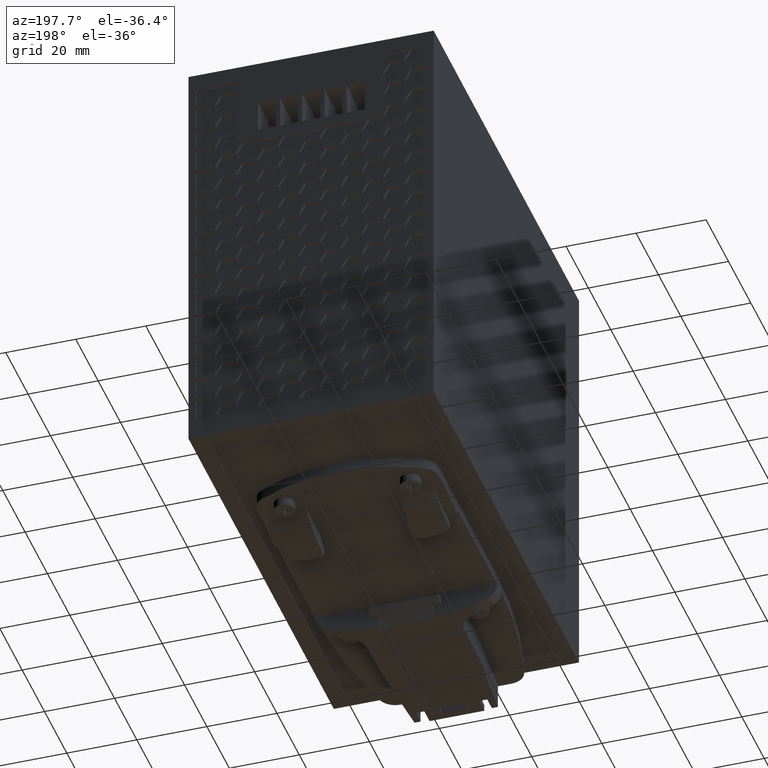
[diagram: clean part render]
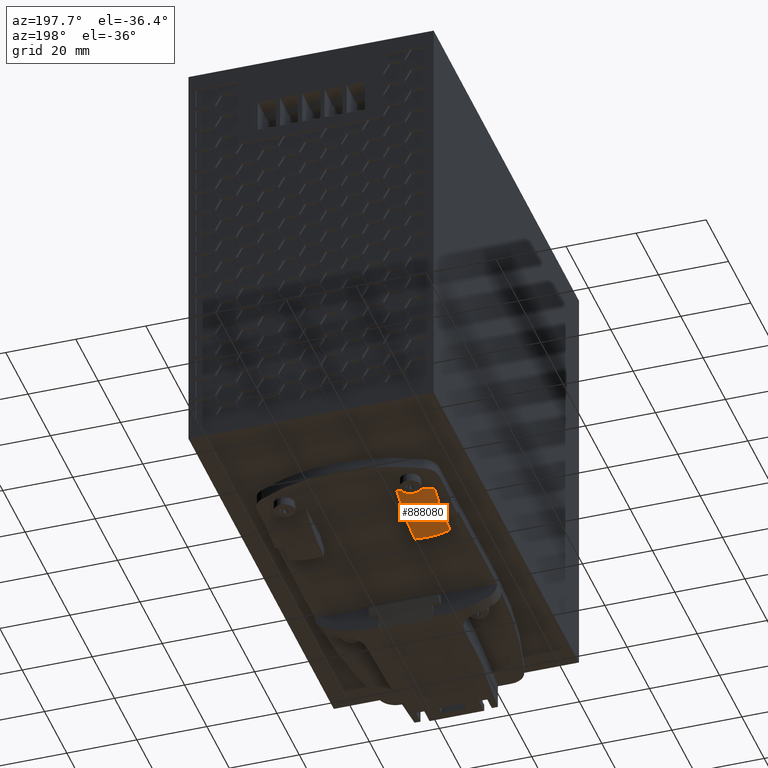
[diagram: same view with one face highlighted and labeled with its STEP entity id]
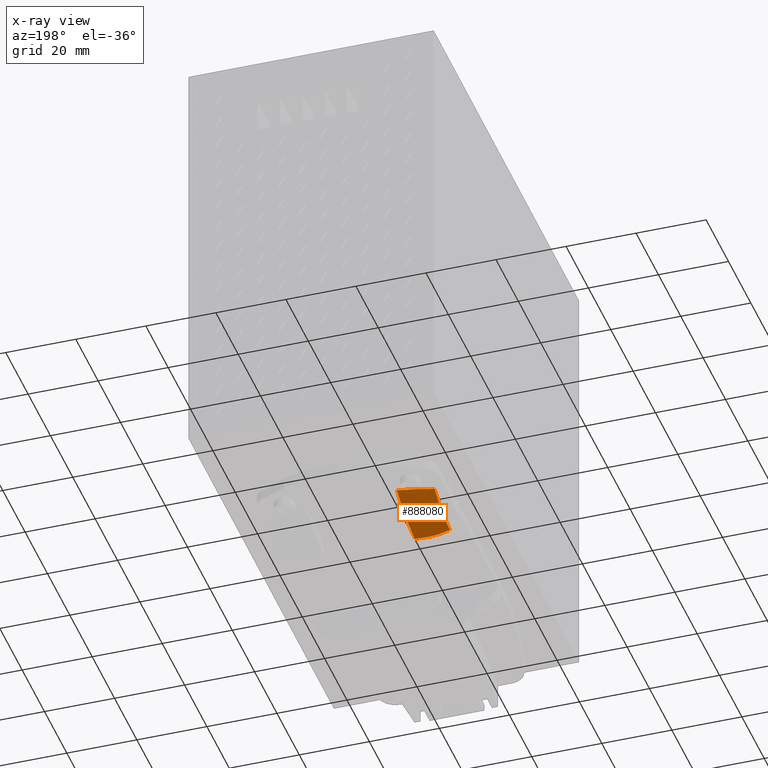
[diagram: x-ray of the same camera — body ghosted, the highlighted face saturated]
A machine part, auxiliary view. The second image highlights one B-rep face of the part: STEP entity #888080.
The next image is the same camera in x-ray: the body ghosted, the highlighted face saturated — about 0% of this face is hidden behind the body in this view.
In plain terms, the highlighted face is a freeform B-spline surface patch.
Its self-contained STEP definition (entity closure, byte-faithful):
#857470=CARTESIAN_POINT('',(22.,-2.90000000000834,35.0890002542883));
#857480=VERTEX_POINT('',#857470);
#861010=CARTESIAN_POINT('',(18.775,-2.90000000000834,41.3012793438114));
#861020=DIRECTION('',(-0.,-1.,-0.));
#861030=DIRECTION('',(-1.,0.,0.));
#861040=AXIS2_PLACEMENT_3D('',#861010,#861020,#861030);
#861050=PLANE('',#861040);
#861940=CARTESIAN_POINT('',(12.,-2.90000000000834,37.575340722643));
#861950=VERTEX_POINT('',#861940);
#861980=CARTESIAN_POINT('',(-7.12537536099568,-0.024157436349638,
72.158718448555));
#861990=CARTESIAN_POINT('',(-0.66433586073838,-2.44680655368535,
72.1423761231903));
#862000=CARTESIAN_POINT('',(5.79670363951892,-4.86945567102107,
72.1260337978256));
#862010=CARTESIAN_POINT('',(12.8831500440995,-7.52660907898587,
72.1081095903016));
#862020=CARTESIAN_POINT('',(14.5182375434165,-8.01053961595613,
72.1026759404664));
#862030=CARTESIAN_POINT('',(16.9951777479325,-8.47560736818407,
72.0958256492188));
#862040=CARTESIAN_POINT('',(19.4687754632712,-8.77872752085569,
72.089618906749));
#862050=CARTESIAN_POINT('',(21.1030366765803,-8.93745753933871,
72.0836423132758));
#862060=CARTESIAN_POINT('',(28.394082302875,-9.66752438148413,
72.0452352190095));
#862070=CARTESIAN_POINT('',(35.3537203614215,-10.3644067273515,
72.0085738828069));
#862080=CARTESIAN_POINT('',(42.3133584199679,-11.0612890732188,
71.9719125466043));
#862090=CARTESIAN_POINT('',(-7.52761834698492,-1.2485053944542,
63.6743786143508));
#862100=CARTESIAN_POINT('',(-0.864892364229036,-3.25933174225435,
64.0517672846608));
#862110=CARTESIAN_POINT('',(5.79783361852685,-5.2701580900545,
64.4291559549709));
#862120=CARTESIAN_POINT('',(12.8829915964941,-7.40847540601442,
64.8304719261157));
#862130=CARTESIAN_POINT('',(14.5164772262398,-7.80818922453216,
64.9197544474227));
#862140=CARTESIAN_POINT('',(16.9903708716928,-8.20601376008756,
65.045562061635));
#862150=CARTESIAN_POINT('',(19.463325081796,-8.46350055586672,
65.1591011451845));
#862160=CARTESIAN_POINT('',(21.1003108576512,-8.58405126132613,
65.2236469105911));
#862170=CARTESIAN_POINT('',(28.4135031051526,-9.08909056299991,
65.4816191918463));
#862180=CARTESIAN_POINT('',(35.3837566268247,-9.57044697370786,
65.7274943365244));
#862190=CARTESIAN_POINT('',(42.3540101484969,-10.0518033844158,
65.9733694812024));
#862200=CARTESIAN_POINT('',(-7.78912550198761,-2.56441494193338,
55.1583092531468));
#862210=CARTESIAN_POINT('',(-0.995080952226413,-4.11763772551065,
55.9452936826315));
#862220=CARTESIAN_POINT('',(5.79896359753478,-5.67086050908792,
56.7322781121161));
#862230=CARTESIAN_POINT('',(12.8828331488888,-7.29034173304296,
57.5528342619299));
#862240=CARTESIAN_POINT('',(14.5147169090632,-7.60583883310819,
57.736832954379));
#862250=CARTESIAN_POINT('',(16.9855639954531,-7.93642015199105,
57.9952984740512));
#862260=CARTESIAN_POINT('',(19.4578747003209,-8.14827359087776,
58.22858338362));
#862270=CARTESIAN_POINT('',(21.0975850387222,-8.23064498331355,
58.3636515079065));
#862280=CARTESIAN_POINT('',(28.4329239074302,-8.51065674451568,
58.9180031646833));
#862290=CARTESIAN_POINT('',(35.387451866039,-8.77613181756605,
59.4435758975806));
#862300=CARTESIAN_POINT('',(42.3419798246477,-9.04160689061642,
59.9691486304779));
#862310=CARTESIAN_POINT('',(-8.16965142602465,-3.79792056626492,
51.2204594136371));
#862320=CARTESIAN_POINT('',(-1.18483091056994,-4.9211387445889,
51.133856690836));
#862330=CARTESIAN_POINT('',(5.79998960488477,-6.04435692291288,
51.047253968035));
#862340=CARTESIAN_POINT('',(12.8826895984745,-7.18331494865066,
50.9594376665465));
#862350=CARTESIAN_POINT('',(14.5130511482921,-7.41435780427321,
50.9397460406842));
#862360=CARTESIAN_POINT('',(16.9807346539096,-7.66556657754523,
50.9120849402991));
#862370=CARTESIAN_POINT('',(19.4521011369891,-7.81435515699468,
50.8871186804927));
#862380=CARTESIAN_POINT('',(21.0946084949544,-7.8447318754686,
50.8726636269333));
#862390=CARTESIAN_POINT('',(28.454089917532,-7.82711598600267,
50.8133366539077));
#862400=CARTESIAN_POINT('',(35.4340730117563,-7.81040847583971,
50.7570689300053));
#862410=CARTESIAN_POINT('',(42.4140561059805,-7.79370096567674,
50.7008012061029));
#862420=CARTESIAN_POINT('',(-8.19583603673193,-4.00604226092996,
50.5184524082355));
#862430=CARTESIAN_POINT('',(-1.19659661321858,-5.04039645466607,
50.2447235402459));
#862440=CARTESIAN_POINT('',(5.80264281029477,-6.07475064840218,
49.9709946722562));
#862450=CARTESIAN_POINT('',(12.8823119102494,-7.12099081546967,
49.6941203304582));
#862460=CARTESIAN_POINT('',(14.5119542937302,-7.33505232569496,
49.6328277990692));
#862470=CARTESIAN_POINT('',(16.9789208596764,-7.5693878396637,
49.5489564261915));
#862480=CARTESIAN_POINT('',(19.4503997576639,-7.70554351738781,
49.4754541755416));
#862490=CARTESIAN_POINT('',(21.0938111664084,-7.72731707697568,
49.4343623559401));
#862500=CARTESIAN_POINT('',(28.459762795702,-7.66458713135351,
49.2692304036977));
#862510=CARTESIAN_POINT('',(35.4342796724132,-7.60519072387819,
49.1128737446044));
#862520=CARTESIAN_POINT('',(42.4087965491244,-7.54579431640287,
48.9565170855112));
#862530=CARTESIAN_POINT('',(-8.19711959482532,-4.20938948776972,
49.5812724498365));
#862540=CARTESIAN_POINT('',(-1.1924239475751,-5.10420904350072,
48.9980203974505));
#862550=CARTESIAN_POINT('',(5.81227169967513,-5.99902859923172,
48.4147683450644));
#862560=CARTESIAN_POINT('',(12.8809400946836,-6.90202039664325,
47.8261895464062));
#862570=CARTESIAN_POINT('',(14.5085326057691,-7.08826144390048,
47.6978889852685));
#862580=CARTESIAN_POINT('',(16.97419678579,-7.2932807154084,
47.5279698057013));
#862590=CARTESIAN_POINT('',(19.4465284079839,-7.40991940613156,
47.3847382421072));
#862600=CARTESIAN_POINT('',(21.0921188804333,-7.4231141913686,
47.3085340393254));
#862610=CARTESIAN_POINT('',(28.4718084232894,-7.32745273147138,
47.0118618943431));
#862620=CARTESIAN_POINT('',(35.4340191050613,-7.23720296770251,
46.7319728875245));
#862630=CARTESIAN_POINT('',(42.3962297868333,-7.14695320393365,
46.4520838807058));
#862640=CARTESIAN_POINT('',(-8.14727378401286,-4.31166006426667,
48.7241720558234));
#862650=CARTESIAN_POINT('',(-1.16070105231801,-5.05783028001332,
47.8155644453267));
#862660=CARTESIAN_POINT('',(5.82587167937684,-5.80400049575998,
46.90695683483));
#862670=CARTESIAN_POINT('',(12.8790021761321,-6.55727912128378,
45.9896933505318));
#862680=CARTESIAN_POINT('',(14.503871772277,-6.71337018716156,
45.7916646808346));
#862690=CARTESIAN_POINT('',(16.9680964642,-6.88582369350843,
45.5348475781014));
#862700=CARTESIAN_POINT('',(19.4417695133363,-6.98290129170221,
45.3239501214777));
#862710=CARTESIAN_POINT('',(21.0900985593592,-6.99142449361005,
45.2156403900233));
#862720=CARTESIAN_POINT('',(28.4861917613651,-6.89275807425877,
44.803951020369));
#862730=CARTESIAN_POINT('',(35.4334754456115,-6.80007892776609,
44.417243773359));
#862740=CARTESIAN_POINT('',(42.3807591298579,-6.70739978127341,
44.030536526349));
#862750=CARTESIAN_POINT('',(-8.04399998775402,-4.3106374791666,
47.9115516515527));
#862760=CARTESIAN_POINT('',(-1.10109890543915,-4.90008256634029,
46.6751284291831));
#862770=CARTESIAN_POINT('',(5.84180217687572,-5.48952765351398,
45.4387052068136));
#862780=CARTESIAN_POINT('',(12.8767319986066,-6.08678588503244,
44.1858930903506));
#862790=CARTESIAN_POINT('',(14.4984983742438,-6.21082713776002,
43.9171433219025));
#862800=CARTESIAN_POINT('',(16.96123740707,-6.34840539350841,
43.5734112051015));
#862810=CARTESIAN_POINT('',(19.4365506244346,-6.4261743614498,
43.2960039368041));
#862820=CARTESIAN_POINT('',(21.0879175614573,-6.43311954490355,
43.1569011166889));
#862830=CARTESIAN_POINT('',(28.5017206574647,-6.35430503049443,
42.6368091162109));
#862840=CARTESIAN_POINT('',(35.4321596935593,-6.28062905337467,
42.1506259986131));
#862850=CARTESIAN_POINT('',(42.362598729654,-6.20695307625491,
41.6644428810153));
#862860=CARTESIAN_POINT('',(-7.89027792931866,-4.1959007166929,
47.1103177304103));
#862870=CARTESIAN_POINT('',(-1.01590895078749,-4.62461348961906,
45.5561850266546));
#862880=CARTESIAN_POINT('',(5.85846002774368,-5.05332626254522,
44.0020523228989));
#862890=CARTESIAN_POINT('',(12.8743580713536,-5.49086534638502,
42.4159232352921));
#862900=CARTESIAN_POINT('',(14.4929283165792,-5.58179742098815,
42.0770270079751));
#862910=CARTESIAN_POINT('',(16.95422750834,-5.68331420490836,
41.6471466100013));
#862920=CARTESIAN_POINT('',(19.4312951103387,-5.74209662482104,
41.3035822293223));
#862930=CARTESIAN_POINT('',(21.0857423466184,-5.74934887802164,
41.1334458614006));
#862940=CARTESIAN_POINT('',(28.5172093967432,-5.70391675419039,
40.5023934455917));
#862950=CARTESIAN_POINT('',(35.4285340465326,-5.66166451042624,
39.9155095790184));
#862960=CARTESIAN_POINT('',(42.3398586963221,-5.61941226666208,
39.3286257124451));
#862970=CARTESIAN_POINT('',(-7.6944328732538,-3.94963908533135,
46.2917333025114));
#862980=CARTESIAN_POINT('',(-0.910076697766906,-4.22030322350496,
44.4408318746255));
#862990=CARTESIAN_POINT('',(5.87427947771998,-4.49096736167858,
42.5899304467396));
#863000=CARTESIAN_POINT('',(12.8721035685558,-4.77014787308514,
40.6807909106077));
#863010=CARTESIAN_POINT('',(14.4876668272526,-4.82816264374594,
40.273731019324));
#863020=CARTESIAN_POINT('',(16.94766504254,-4.89373821890831,
39.7592036742013));
#863030=CARTESIAN_POINT('',(19.4264221575103,-4.93369883969626,
39.3491354368592));
#863040=CARTESIAN_POINT('',(21.0837384759684,-4.9415399211984,
39.1463136691799));
#863050=CARTESIAN_POINT('',(28.5314787047328,-4.93143760581714,
38.3933066431768));
#863060=CARTESIAN_POINT('',(35.4204935270161,-4.92209316062127,
37.6967897932221));
#863070=CARTESIAN_POINT('',(42.3095083492995,-4.91274871542538,
37.0002729432675));
#863080=CARTESIAN_POINT('',(-7.46938466950847,-3.54778199189249,
45.4329590865738));
#863090=CARTESIAN_POINT('',(-0.790826265548144,-3.67183057653326,
43.3145644891011));
#863100=CARTESIAN_POINT('',(5.88773213841218,-3.79587916117403,
41.1961698916284));
#863110=CARTESIAN_POINT('',(12.870186335676,-3.92557235364143,
38.9813815564971));
#863120=CARTESIAN_POINT('',(14.4832084720973,-3.95252381002911,
38.5093896921983));
#863130=CARTESIAN_POINT('',(16.9421386832222,-3.9837682579971,
37.9124023866239));
#863140=CARTESIAN_POINT('',(19.4223467833946,-4.00468760557749,
37.4348882682419));
#863150=CARTESIAN_POINT('',(21.082070617391,-4.01140109552057,
37.1964594810578));
#863160=CARTESIAN_POINT('',(28.5433557079667,-4.02473616518314,
36.3028036706555));
#863170=CARTESIAN_POINT('',(35.4055715901075,-4.03700055740473,
35.4808998000935));
#863180=CARTESIAN_POINT('',(42.2677874722484,-4.04926494962633,
34.6589959295315));
#863190=CARTESIAN_POINT('',(-7.31363716802261,-3.15754285448305,
44.8258285629423));
#863200=CARTESIAN_POINT('',(-0.709754181756901,-3.19786550896179,
42.5507716899224));
#863210=CARTESIAN_POINT('',(5.89412880450881,-3.23818816344053,
40.2757148169024));
#863220=CARTESIAN_POINT('',(12.8692746905628,-3.28077771236002,
37.8727567963882));
#863230=CARTESIAN_POINT('',(14.4810942273011,-3.28963808145841,
37.3603574460513));
#863240=CARTESIAN_POINT('',(16.9395311882475,-3.30018372199237,
36.7102788178943));
#863250=CARTESIAN_POINT('',(19.420435454732,-3.3078550628689,
36.186844986592));
#863260=CARTESIAN_POINT('',(21.0812918902404,-3.31107721427543,
35.9219781741638));
#863270=CARTESIAN_POINT('',(28.5489012813807,-3.32137816759098,
34.9174507516356));
#863280=CARTESIAN_POINT('',(35.3895364115477,-3.33081426145097,
33.9972626143295));
#863290=CARTESIAN_POINT('',(42.2301715417147,-3.34025035531096,
33.0770744770234));
#863300=CARTESIAN_POINT('',(-6.40833559284048,-0.736216203605338,
41.4542497601969));
#863310=CARTESIAN_POINT('',(-0.245222485564284,-0.424595916227286,
38.5085761623464));
#863320=CARTESIAN_POINT('',(5.91789062171191,-0.112975628849234,
35.5629025644959));
#863330=CARTESIAN_POINT('',(12.8658881688473,0.238330108146599,
32.2420917053923));
#863340=CARTESIAN_POINT('',(14.473248477479,0.311415443437612,
31.5311384032703));
#863350=CARTESIAN_POINT('',(16.9298784917531,0.398385753211047,
30.614207249576));
#863360=CARTESIAN_POINT('',(19.4133834024027,0.461616839194818,
29.8517998998828));
#863370=CARTESIAN_POINT('',(21.0784266193917,0.488135682927711,
29.4425171860976));
#863380=CARTESIAN_POINT('',(28.5693062157453,0.572758473327926,
27.8139320998029));
#863390=CARTESIAN_POINT('',(35.2564008809907,0.648301085242143,
26.3600971392516));
#863400=CARTESIAN_POINT('',(41.9434955462362,0.72384369715636,
24.9062621787003));
#863410=CARTESIAN_POINT('',(-6.70629037938491,4.16933033329189,
34.6662853570212));
#863420=CARTESIAN_POINT('',(-0.381246404249566,4.14245616340313,
31.8927248074745));
#863430=CARTESIAN_POINT('',(5.94379757088577,4.11558199351438,
29.1191642579277));
#863440=CARTESIAN_POINT('',(12.8621852842269,4.08618679444612,
26.0854197806363));
#863450=CARTESIAN_POINT('',(14.4650446087872,4.07683888166005,
25.435844940268));
#863460=CARTESIAN_POINT('',(16.9203496047663,4.04951583507576,
24.5963264355181));
#863470=CARTESIAN_POINT('',(19.4067539408903,4.00520496497006,
23.8963793187601));
#863480=CARTESIAN_POINT('',(21.0758070747328,3.96152733716795,
23.5187360427738));
#863490=CARTESIAN_POINT('',(28.5879946499539,3.72999841088277,
22.0121625802864));
#863500=CARTESIAN_POINT('',(35.2955131551864,3.52326973937342,
20.6669659544117));
#863510=CARTESIAN_POINT('',(42.0030316604188,3.31654106786407,
19.3217693285369));
#863520=CARTESIAN_POINT('',(-6.94579289760747,9.11301265357938,
27.8250641701576));
#863530=CARTESIAN_POINT('',(-0.488044188773914,8.72857613472869,
25.2502450607586));
#863540=CARTESIAN_POINT('',(5.96970452005964,8.344139615878,
22.6754259513596));
#863550=CARTESIAN_POINT('',(12.8584823996065,7.93404348074564,
19.9287478558804));
#863560=CARTESIAN_POINT('',(14.4568407400954,7.84226231988249,
19.3405514772657));
#863570=CARTESIAN_POINT('',(16.9108207177796,7.70064591694048,
18.5784456214602));
#863580=CARTESIAN_POINT('',(19.400124479378,7.54879309074531,
17.9409587376375));
#863590=CARTESIAN_POINT('',(21.0731875300738,7.4349189914082,
17.5949548994499));
#863600=CARTESIAN_POINT('',(28.6066830841626,6.88723834843763,
16.21039306077));
#863610=CARTESIAN_POINT('',(35.3149033128985,6.39955473043002,
14.9775064588622));
#863620=CARTESIAN_POINT('',(42.0231235416344,5.91187111242241,
13.7446198569543));
#863630=B_SPLINE_SURFACE_WITH_KNOTS('',3,3,((#861980,#862090,#862200,
#862310,#862420,#862530,#862640,#862750,#862860,#862970,#863080,#863190,
#863300,#863410,#863520),(#861990,#862100,#862210,#862320,#862430,
#862540,#862650,#862760,#862870,#862980,#863090,#863200,#863310,#863420,
#863530),(#862000,#862110,#862220,#862330,#862440,#862550,#862660,
#862770,#862880,#862990,#863100,#863210,#863320,#863430,#863540),(
#862010,#862120,#862230,#862340,#862450,#862560,#862670,#862780,#862890,
#863000,#863110,#863220,#863330,#863440,#863550),(#862020,#862130,
#862240,#862350,#862460,#862570,#862680,#862790,#862900,#863010,#863120,
#863230,#863340,#863450,#863560),(#862030,#862140,#862250,#862360,
#862470,#862580,#862690,#862800,#862910,#863020,#863130,#863240,#863350,
#863460,#863570),(#862040,#862150,#862260,#862370,#862480,#862590,
#862700,#862810,#862920,#863030,#863140,#863250,#863360,#863470,#863580)
,(#862050,#862160,#862270,#862380,#862490,#862600,#862710,#862820,
#862930,#863040,#863150,#863260,#863370,#863480,#863590),(#862060,
#862170,#862280,#862390,#862500,#862610,#862720,#862830,#862940,#863050,
#863160,#863270,#863380,#863490,#863600),(#862070,#862180,#862290,
#862400,#862510,#862620,#862730,#862840,#862950,#863060,#863170,#863280,
#863390,#863500,#863610),(#862080,#862190,#862300,#862410,#862520,
#862630,#862740,#862850,#862960,#863070,#863180,#863290,#863400,#863510,
#863620)),.UNSPECIFIED.,.F.,.F.,.F.,(4,2,1,1,1,2,4),(4,2,1,1,1,1,1,1,1,2
,4),(-1.88944677512457,0.00831619508924597,0.25,0.5,0.75,
0.990152983774387,2.94222770872494),(-1.16260997865981,
-9.31254367508644E-8,0.12442326814,0.2488465362801,0.3732698044201,
0.4976930725602,0.6221163407002,0.7465396088402,0.8709628769803,
0.995384902128696,2.14909443833572),.UNSPECIFIED.);
#863640=CARTESIAN_POINT('',(12.,-2.90000000000834,37.575340722643));
#863650=CARTESIAN_POINT('',(12.8098523928824,-2.90000000000834,
37.2846986188671));
#863660=CARTESIAN_POINT('',(13.6254855170253,-2.90000000000834,
37.0120279361717));
#863670=CARTESIAN_POINT('',(14.4487023094836,-2.90000000000834,
36.7615518552689));
#863680=CARTESIAN_POINT('',(15.2715924499733,-2.90000000000834,
36.5111751631367));
#863690=CARTESIAN_POINT('',(16.1011767199548,-2.90000000000834,
36.2818384969501));
#863700=CARTESIAN_POINT('',(16.9358730674224,-2.90000000000834,
36.0741729298662));
#863710=CARTESIAN_POINT('',(17.7705662624255,-2.90000000000834,
35.8665081470895));
#863720=CARTESIAN_POINT('',(18.6109055313342,-2.90000000000834,
35.680381990365));
#863730=CARTESIAN_POINT('',(19.4552257207205,-2.90000000000834,
35.5161731626856));
#863740=CARTESIAN_POINT('',(20.2999385087315,-2.90000000000834,
35.3518879798973));
#863750=CARTESIAN_POINT('',(21.1482472324526,-2.90000000000834,
35.2112414369301));
#863760=CARTESIAN_POINT('',(22.,-2.90000000000834,35.0890002542883));
#863770=B_SPLINE_CURVE_WITH_KNOTS('',3,(#863640,#863650,#863660,#863670,
#863680,#863690,#863700,#863710,#863720,#863730,#863740,#863750,#863760)
,.UNSPECIFIED.,.F.,.F.,(4,3,3,3,4),(0.,2.58064694960823,5.16134092537125
,7.74203615636964,10.3226785178515),.UNSPECIFIED.);
#863780=SURFACE_CURVE('',#863770,(#863630,#861050),.CURVE_3D.);
#863790=EDGE_CURVE('',#861950,#857480,#863780,.T.);
#885080=CARTESIAN_POINT('',(12.,-2.90000000000834,21.8968498908008));
#885090=DIRECTION('',(-1.,0.,0.));
#885100=DIRECTION('',(0.,0.,1.));
#885110=AXIS2_PLACEMENT_3D('',#885080,#885090,#885100);
#885120=PLANE('',#885110);
#886170=CARTESIAN_POINT('',(12.,-7.04349894827934,51.3788823513495));
#886180=VERTEX_POINT('',#886170);
#886210=CARTESIAN_POINT('',(12.,-2.90000000000829,37.5753407226429));
#886220=CARTESIAN_POINT('',(12.,-3.22404283188741,38.0904708710931));
#886230=CARTESIAN_POINT('',(12.,-3.53408433612107,38.6134910896639));
#886240=CARTESIAN_POINT('',(12.,-3.82591971477306,39.1476515736947));
#886250=CARTESIAN_POINT('',(12.,-4.11751822040937,39.681378497527));
#886260=CARTESIAN_POINT('',(12.,-4.39177267199804,40.2249986312952));
#886270=CARTESIAN_POINT('',(12.,-4.64702847489979,40.7771344188022));
#886280=CARTESIAN_POINT('',(12.,-5.15762827104063,41.8815967555572));
#886290=CARTESIAN_POINT('',(12.,-5.59219289792788,43.0208846242622));
#886300=CARTESIAN_POINT('',(12.,-5.94339688928144,44.1860265979426));
#886310=CARTESIAN_POINT('',(12.,-6.29457588107365,45.35108563396));
#886320=CARTESIAN_POINT('',(12.,-6.56201437903282,46.5408126196178));
#886330=CARTESIAN_POINT('',(12.,-6.74469223584818,47.7439116342956));
#886340=CARTESIAN_POINT('',(12.,-6.92735990593064,48.946943560118));
#886350=CARTESIAN_POINT('',(12.,-7.02521823771279,50.1622223179898));
#886360=CARTESIAN_POINT('',(12.,-7.04349894827927,51.3788823513446));
#886370=B_SPLINE_CURVE_WITH_KNOTS('',3,(#886210,#886220,#886230,#886240,
#886250,#886260,#886270,#886280,#886290,#886300,#886310,#886320,#886330,
#886340,#886350,#886360),.UNSPECIFIED.,.F.,.F.,(4,3,3,3,3,4),(0.,
1.82497602136817,3.64999092161599,7.30005247556644,10.9501231854973,
14.6001531178201),.UNSPECIFIED.);
#886380=SURFACE_CURVE('',#886370,(#863630,#885120),.CURVE_3D.);
#886390=EDGE_CURVE('',#861950,#886180,#886380,.T.);
#887210=CARTESIAN_POINT('',(17.00260426643,0.0999999999916668,
21.6500835190014));
#887220=DIRECTION('',(0.,1.,0.));
#887230=DIRECTION('',(0.,0.,1.));
#887240=AXIS2_PLACEMENT_3D('',#887210,#887220,#887230);
#887250=CYLINDRICAL_SURFACE('',#887240,30.14676648433);
#887310=CARTESIAN_POINT('',(22.,-7.87067314004532,51.3797583463994));
#887320=VERTEX_POINT('',#887310);
#887350=CARTESIAN_POINT('',(22.,-7.87067314004532,51.3797583463994));
#887360=CARTESIAN_POINT('',(21.1704032618213,-7.87881694438885,
51.5192090206509));
#887370=CARTESIAN_POINT('',(20.3356721057386,-7.86794089329095,
51.6238226080517));
#887380=CARTESIAN_POINT('',(19.4978150978157,-7.8361141622261,
51.6934097723919));
#887390=CARTESIAN_POINT('',(18.6603156611609,-7.80430101381853,
51.7629672390983));
#887400=CARTESIAN_POINT('',(17.8197778143106,-7.75256680468128,
51.7974219122715));
#887410=CARTESIAN_POINT('',(16.9817712453614,-7.68176844526222,
51.7968428049671));
#887420=CARTESIAN_POINT('',(16.1437527834738,-7.61096908107714,
51.796263689444));
#887430=CARTESIAN_POINT('',(15.306602353155,-7.5208554672808,
51.7606607838187));
#887440=CARTESIAN_POINT('',(14.4754183110407,-7.41354520894242,
51.6907369840578));
#887450=CARTESIAN_POINT('',(13.6440431893331,-7.30621028121738,
51.6207971096246));
#887460=CARTESIAN_POINT('',(12.8184443098416,-7.18073207998395,
51.5166058099843));
#887470=CARTESIAN_POINT('',(12.,-7.04349894827934,51.3788823513495));
#887480=B_SPLINE_CURVE_WITH_KNOTS('',3,(#887350,#887360,#887370,#887380,
#887390,#887400,#887410,#887420,#887430,#887440,#887450,#887460,#887470)
,.UNSPECIFIED.,.F.,.F.,(4,3,3,3,4),(0.,2.52297631348536,5.04682906112155
,7.5706463208156,10.0937644686316),.UNSPECIFIED.);
#887490=SURFACE_CURVE('',#887480,(#887250,#863630),.CURVE_3D.);
#887500=EDGE_CURVE('',#887320,#886180,#887490,.T.);
#887630=CARTESIAN_POINT('',(22.,-2.90000000000833,536.346849890801));
#887640=DIRECTION('',(-1.,0.,0.));
#887650=DIRECTION('',(0.,0.,1.));
#887660=AXIS2_PLACEMENT_3D('',#887630,#887640,#887650);
#887670=PLANE('',#887660);
#887680=CARTESIAN_POINT('',(22.,-2.90000000000834,35.0890002542883));
#887690=CARTESIAN_POINT('',(22.,-3.26007993303081,35.7084798595417));
#887700=CARTESIAN_POINT('',(22.,-3.6054458197813,36.3357032378967));
#887710=CARTESIAN_POINT('',(22.,-3.93192030599686,36.973635455573));
#887720=CARTESIAN_POINT('',(22.,-4.25819799701208,37.6111831347819));
#887730=CARTESIAN_POINT('',(22.,-4.56654318408184,38.258262163779));
#887740=CARTESIAN_POINT('',(22.,-4.85566011492888,38.9135765725663));
#887750=CARTESIAN_POINT('',(22.,-5.43396286977301,40.2243615438249));
#887760=CARTESIAN_POINT('',(22.,-5.93540518422579,41.5688497093265));
#887770=CARTESIAN_POINT('',(22.,-6.35435563404746,42.9390116471782));
#887780=CARTESIAN_POINT('',(22.,-6.77328733970488,44.3091122829347));
#887790=CARTESIAN_POINT('',(22.,-7.10949733500494,45.70415947394));
#887800=CARTESIAN_POINT('',(22.,-7.36186683836435,47.1145166591634));
#887810=CARTESIAN_POINT('',(22.,-7.61422863435241,48.5248307720409));
#887820=CARTESIAN_POINT('',(22.,-7.78269206119267,49.9497512208799));
#887830=CARTESIAN_POINT('',(22.,-7.8706731400452,51.3797583463975));
#887840=B_SPLINE_CURVE_WITH_KNOTS('',3,(#887680,#887690,#887700,#887710,
#887720,#887730,#887740,#887750,#887760,#887770,#887780,#887790,#887800,
#887810,#887820,#887830),.UNSPECIFIED.,.F.,.F.,(4,3,3,3,3,4),(0.,
2.14890926930394,4.29784848068638,8.59574530293485,12.8936466706527,
17.1915226992976),.UNSPECIFIED.);
#887850=SURFACE_CURVE('',#887840,(#863630,#887670),.CURVE_3D.);
#887860=EDGE_CURVE('',#857480,#887320,#887850,.T.);
#888020=ORIENTED_EDGE('',*,*,#887500,.T.);
#888030=ORIENTED_EDGE('',*,*,#887860,.T.);
#888040=ORIENTED_EDGE('',*,*,#863790,.T.);
#888050=ORIENTED_EDGE('',*,*,#886390,.F.);
#888060=EDGE_LOOP('',(#888050,#888040,#888030,#888020));
#888070=FACE_OUTER_BOUND('',#888060,.T.);
#888080=ADVANCED_FACE('',(#888070),#863630,.F.);